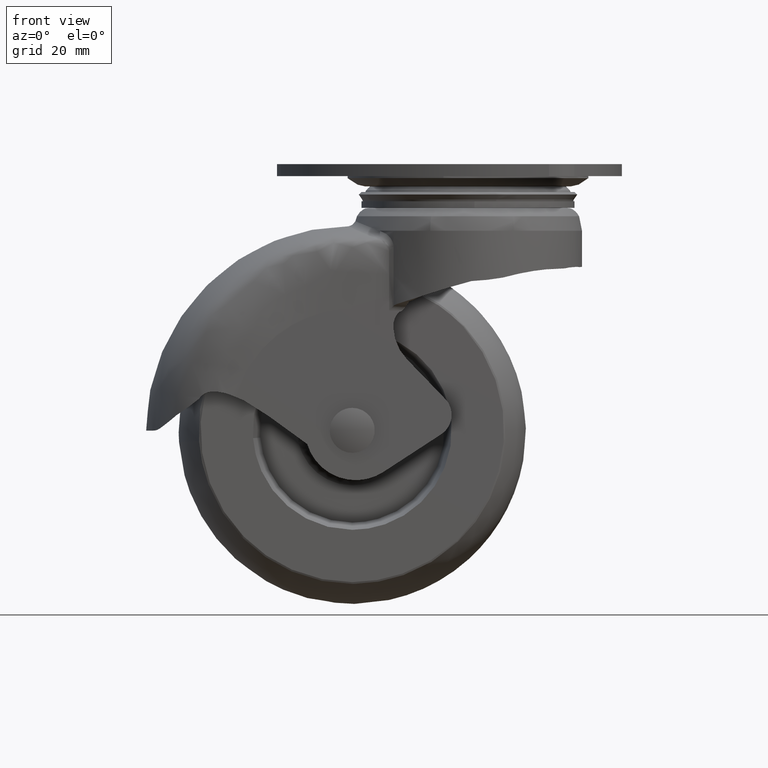
[diagram: clean part render]
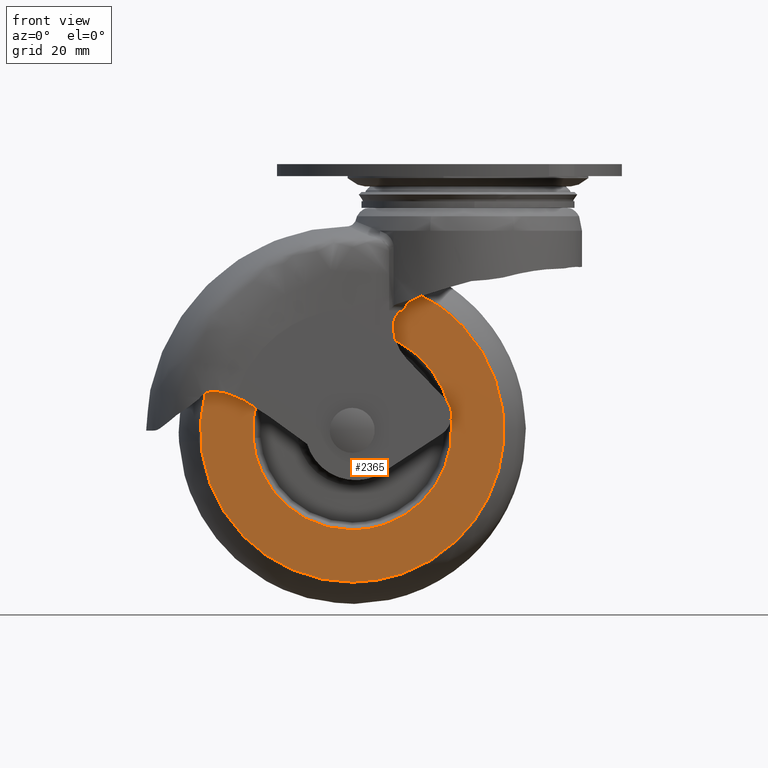
[diagram: same view with one face highlighted and labeled with its STEP entity id]
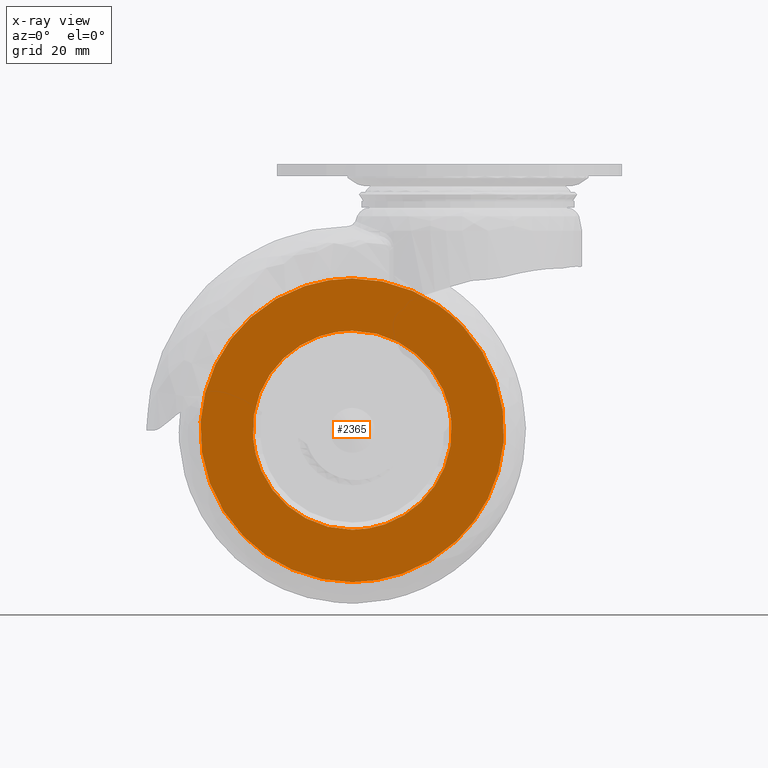
[diagram: x-ray of the same camera — body ghosted, the highlighted face saturated]
A machine part, front view. The second image highlights one B-rep face of the part: STEP entity #2365.
The next image is the same camera in x-ray: the body ghosted, the highlighted face saturated — about 0% of this face is hidden behind the body in this view.
In plain terms, the highlighted face is a freeform B-spline surface patch.
Its self-contained STEP definition (entity closure, byte-faithful):
#680=CARTESIAN_POINT('',(0.0,-11.500000000000000,-36.000000000000007));
#681=VERTEX_POINT('',#680);
#682=CARTESIAN_POINT('',(21.433722675258700,-11.500000000010379,-55.813129441780021));
#683=VERTEX_POINT('',#682);
#684=CARTESIAN_POINT('',(0.0,-11.500000000000000,-36.000000000000007));
#685=CARTESIAN_POINT('',(19.874395570519091,-11.500000000000000,-36.000000000000007));
#686=CARTESIAN_POINT('',(21.433722675258700,-11.500000000010381,-55.813129441780021));
#694=(BOUNDED_CURVE()B_SPLINE_CURVE(2,(#684,#685,#686),.UNSPECIFIED.,.F.,.U.)B_SPLINE_CURVE_WITH_KNOTS((3,3),(0.0,0.236331300631629),.UNSPECIFIED.)CURVE()GEOMETRIC_REPRESENTATION_ITEM()RATIONAL_B_SPLINE_CURVE((1.0,0.723120658606530,0.969723356169440))REPRESENTATION_ITEM(''));
#695=EDGE_CURVE('',#681,#683,#694,.T.);
#697=CARTESIAN_POINT('',(-21.433722675258711,-11.500000000010390,-59.186870558219972));
#698=VERTEX_POINT('',#697);
#699=CARTESIAN_POINT('',(-21.433722675258711,-11.500000000010386,-59.186870558219972));
#700=CARTESIAN_POINT('',(-21.500000000000000,-11.499999999999996,-58.344737300736369));
#701=CARTESIAN_POINT('',(-21.500000000000000,-11.500000000000000,-57.500000000000000));
#702=CARTESIAN_POINT('',(-21.499999999999996,-11.500000000000000,-36.000000000000014));
#703=CARTESIAN_POINT('',(0.0,-11.500000000000000,-36.000000000000007));
#711=(BOUNDED_CURVE()B_SPLINE_CURVE(2,(#699,#700,#701,#702,#703),.UNSPECIFIED.,.F.,.U.)B_SPLINE_CURVE_WITH_KNOTS((3,2,3),(0.736331300631629,0.750000000000000,1.0),.UNSPECIFIED.)CURVE()GEOMETRIC_REPRESENTATION_ITEM()RATIONAL_B_SPLINE_CURVE((0.969723356169441,0.983986122580018,1.0,0.707106781186548,1.0))REPRESENTATION_ITEM(''));
#712=EDGE_CURVE('',#698,#681,#711,.T.);
#779=CARTESIAN_POINT('',(0.0,-11.500000000000000,-79.0));
#780=VERTEX_POINT('',#779);
#781=CARTESIAN_POINT('',(21.433722675258707,-11.500000000010379,-55.813129441780028));
#782=CARTESIAN_POINT('',(21.500000000000004,-11.499999999999998,-56.655262699263638));
#783=CARTESIAN_POINT('',(21.500000000000000,-11.500000000000000,-57.500000000000000));
#784=CARTESIAN_POINT('',(21.499999999999996,-11.500000000000000,-79.0));
#785=CARTESIAN_POINT('',(0.0,-11.500000000000000,-79.0));
#793=(BOUNDED_CURVE()B_SPLINE_CURVE(2,(#781,#782,#783,#784,#785),.UNSPECIFIED.,.F.,.U.)B_SPLINE_CURVE_WITH_KNOTS((3,2,3),(0.236331300631629,0.250000000000000,0.500000000000000),.UNSPECIFIED.)CURVE()GEOMETRIC_REPRESENTATION_ITEM()RATIONAL_B_SPLINE_CURVE((0.969723356169441,0.983986122580018,1.0,0.707106781186548,1.0))REPRESENTATION_ITEM(''));
#794=EDGE_CURVE('',#683,#780,#793,.T.);
#828=CARTESIAN_POINT('',(0.0,-11.500000000000000,-79.0));
#829=CARTESIAN_POINT('',(-19.874395570519145,-11.499999999999998,-79.0));
#830=CARTESIAN_POINT('',(-21.433722675258707,-11.500000000010390,-59.186870558219972));
#838=(BOUNDED_CURVE()B_SPLINE_CURVE(2,(#828,#829,#830),.UNSPECIFIED.,.F.,.U.)B_SPLINE_CURVE_WITH_KNOTS((3,3),(0.500000000000000,0.736331300631629),.UNSPECIFIED.)CURVE()GEOMETRIC_REPRESENTATION_ITEM()RATIONAL_B_SPLINE_CURVE((1.0,0.723120658606530,0.969723356169441))REPRESENTATION_ITEM(''));
#839=EDGE_CURVE('',#780,#698,#838,.T.);
#2018=CARTESIAN_POINT('',(22.452032002912031,-11.500000000000000,-81.408985678609895));
#2019=VERTEX_POINT('',#2018);
#2033=CARTESIAN_POINT('',(0.0,-11.500000000000000,-90.298373999999995));
#2034=VERTEX_POINT('',#2033);
#2035=CARTESIAN_POINT('',(22.452032002912031,-11.500000000000000,-81.408985678609895));
#2036=CARTESIAN_POINT('',(12.985794909624710,-11.500000000000000,-90.298373999999981));
#2037=CARTESIAN_POINT('',(0.0,-11.500000000000000,-90.298373999999995));
#2045=(BOUNDED_CURVE()B_SPLINE_CURVE(2,(#2035,#2036,#2037),.UNSPECIFIED.,.F.,.U.)B_SPLINE_CURVE_WITH_KNOTS((3,3),(0.379740687157133,0.500000000000000),.UNSPECIFIED.)CURVE()GEOMETRIC_REPRESENTATION_ITEM()RATIONAL_B_SPLINE_CURVE((0.853764031098901,0.859107451076635,1.0))REPRESENTATION_ITEM(''));
#2046=EDGE_CURVE('',#2019,#2034,#2045,.T.);
#2048=CARTESIAN_POINT('',(0.0,-11.500000000000000,-24.701626000000012));
#2049=VERTEX_POINT('',#2048);
#2050=CARTESIAN_POINT('',(0.0,-11.500000000000000,-90.298373999999995));
#2051=CARTESIAN_POINT('',(-32.798374000000003,-11.500000000000000,-90.298373999999995));
#2052=CARTESIAN_POINT('',(-32.798374000000003,-11.500000000000000,-57.500000000000000));
#2053=CARTESIAN_POINT('',(-32.798374000000003,-11.500000000000000,-24.701626000000008));
#2054=CARTESIAN_POINT('',(0.0,-11.500000000000000,-24.701626000000012));
#2062=(BOUNDED_CURVE()B_SPLINE_CURVE(2,(#2050,#2051,#2052,#2053,#2054),.UNSPECIFIED.,.F.,.U.)B_SPLINE_CURVE_WITH_KNOTS((3,2,3),(0.500000000000000,0.750000000000000,1.0),.UNSPECIFIED.)CURVE()GEOMETRIC_REPRESENTATION_ITEM()RATIONAL_B_SPLINE_CURVE((1.0,0.707106781186548,1.0,0.707106781186548,1.0))REPRESENTATION_ITEM(''));
#2063=EDGE_CURVE('',#2034,#2049,#2062,.T.);
#2065=CARTESIAN_POINT('',(23.908985678609898,-11.500000000000000,-35.047967997087980));
#2066=VERTEX_POINT('',#2065);
#2067=CARTESIAN_POINT('',(0.0,-11.500000000000000,-24.701626000000012));
#2068=CARTESIAN_POINT('',(14.193123832681472,-11.500000000000000,-24.701626000000001));
#2069=CARTESIAN_POINT('',(23.908985678609898,-11.500000000000002,-35.047967997087980));
#2077=(BOUNDED_CURVE()B_SPLINE_CURVE(2,(#2067,#2068,#2069),.UNSPECIFIED.,.F.,.U.)B_SPLINE_CURVE_WITH_KNOTS((3,3),(0.0,0.129740687157133),.UNSPECIFIED.)CURVE()GEOMETRIC_REPRESENTATION_ITEM()RATIONAL_B_SPLINE_CURVE((1.0,0.847999330109913,0.853764031098901))REPRESENTATION_ITEM(''));
#2078=EDGE_CURVE('',#2049,#2066,#2077,.T.);
#2119=CARTESIAN_POINT('',(23.908985678609898,-11.500000000000002,-35.047967997087980));
#2120=CARTESIAN_POINT('',(32.798373999999995,-11.500000000000000,-44.514205090375299));
#2121=CARTESIAN_POINT('',(32.798374000000003,-11.500000000000000,-57.500000000000000));
#2122=CARTESIAN_POINT('',(32.798373999999988,-11.500000000000000,-71.693123832681508));
#2123=CARTESIAN_POINT('',(22.452032002912034,-11.500000000000002,-81.408985678609895));
#2131=(BOUNDED_CURVE()B_SPLINE_CURVE(2,(#2119,#2120,#2121,#2122,#2123),.UNSPECIFIED.,.F.,.U.)B_SPLINE_CURVE_WITH_KNOTS((3,2,3),(0.129740687157133,0.250000000000000,0.379740687157133),.UNSPECIFIED.)CURVE()GEOMETRIC_REPRESENTATION_ITEM()RATIONAL_B_SPLINE_CURVE((0.853764031098901,0.859107451076635,1.0,0.847999330109913,0.853764031098901))REPRESENTATION_ITEM(''));
#2132=EDGE_CURVE('',#2066,#2019,#2131,.T.);
#2348=CARTESIAN_POINT('',(-36.074572634085982,-11.500000000000000,-93.574927740808747));
#2349=CARTESIAN_POINT('',(-36.074572634085982,-11.500000000000000,-21.425066980865591));
#2350=CARTESIAN_POINT('',(36.067378270630847,-11.500000000000000,-93.574927740808747));
#2351=CARTESIAN_POINT('',(36.067378270630847,-11.500000000000000,-21.425066980865591));
#2352=B_SPLINE_SURFACE_WITH_KNOTS('',1,1,((#2348,#2350),(#2349,#2351)),.UNSPECIFIED.,.F.,.F.,.U.,(2,2),(2,2),(0.0,72.149860759943152),(0.0,72.141950904716822),.UNSPECIFIED.);
#2353=ORIENTED_EDGE('',*,*,#2063,.F.);
#2354=ORIENTED_EDGE('',*,*,#2046,.F.);
#2355=ORIENTED_EDGE('',*,*,#2132,.F.);
#2356=ORIENTED_EDGE('',*,*,#2078,.F.);
#2357=EDGE_LOOP('',(#2353,#2354,#2355,#2356));
#2358=FACE_OUTER_BOUND('',#2357,.T.);
#2359=ORIENTED_EDGE('',*,*,#839,.T.);
#2360=ORIENTED_EDGE('',*,*,#712,.T.);
#2361=ORIENTED_EDGE('',*,*,#695,.T.);
#2362=ORIENTED_EDGE('',*,*,#794,.T.);
#2363=EDGE_LOOP('',(#2359,#2360,#2361,#2362));
#2364=FACE_BOUND('',#2363,.T.);
#2365=ADVANCED_FACE('',(#2358,#2364),#2352,.F.);